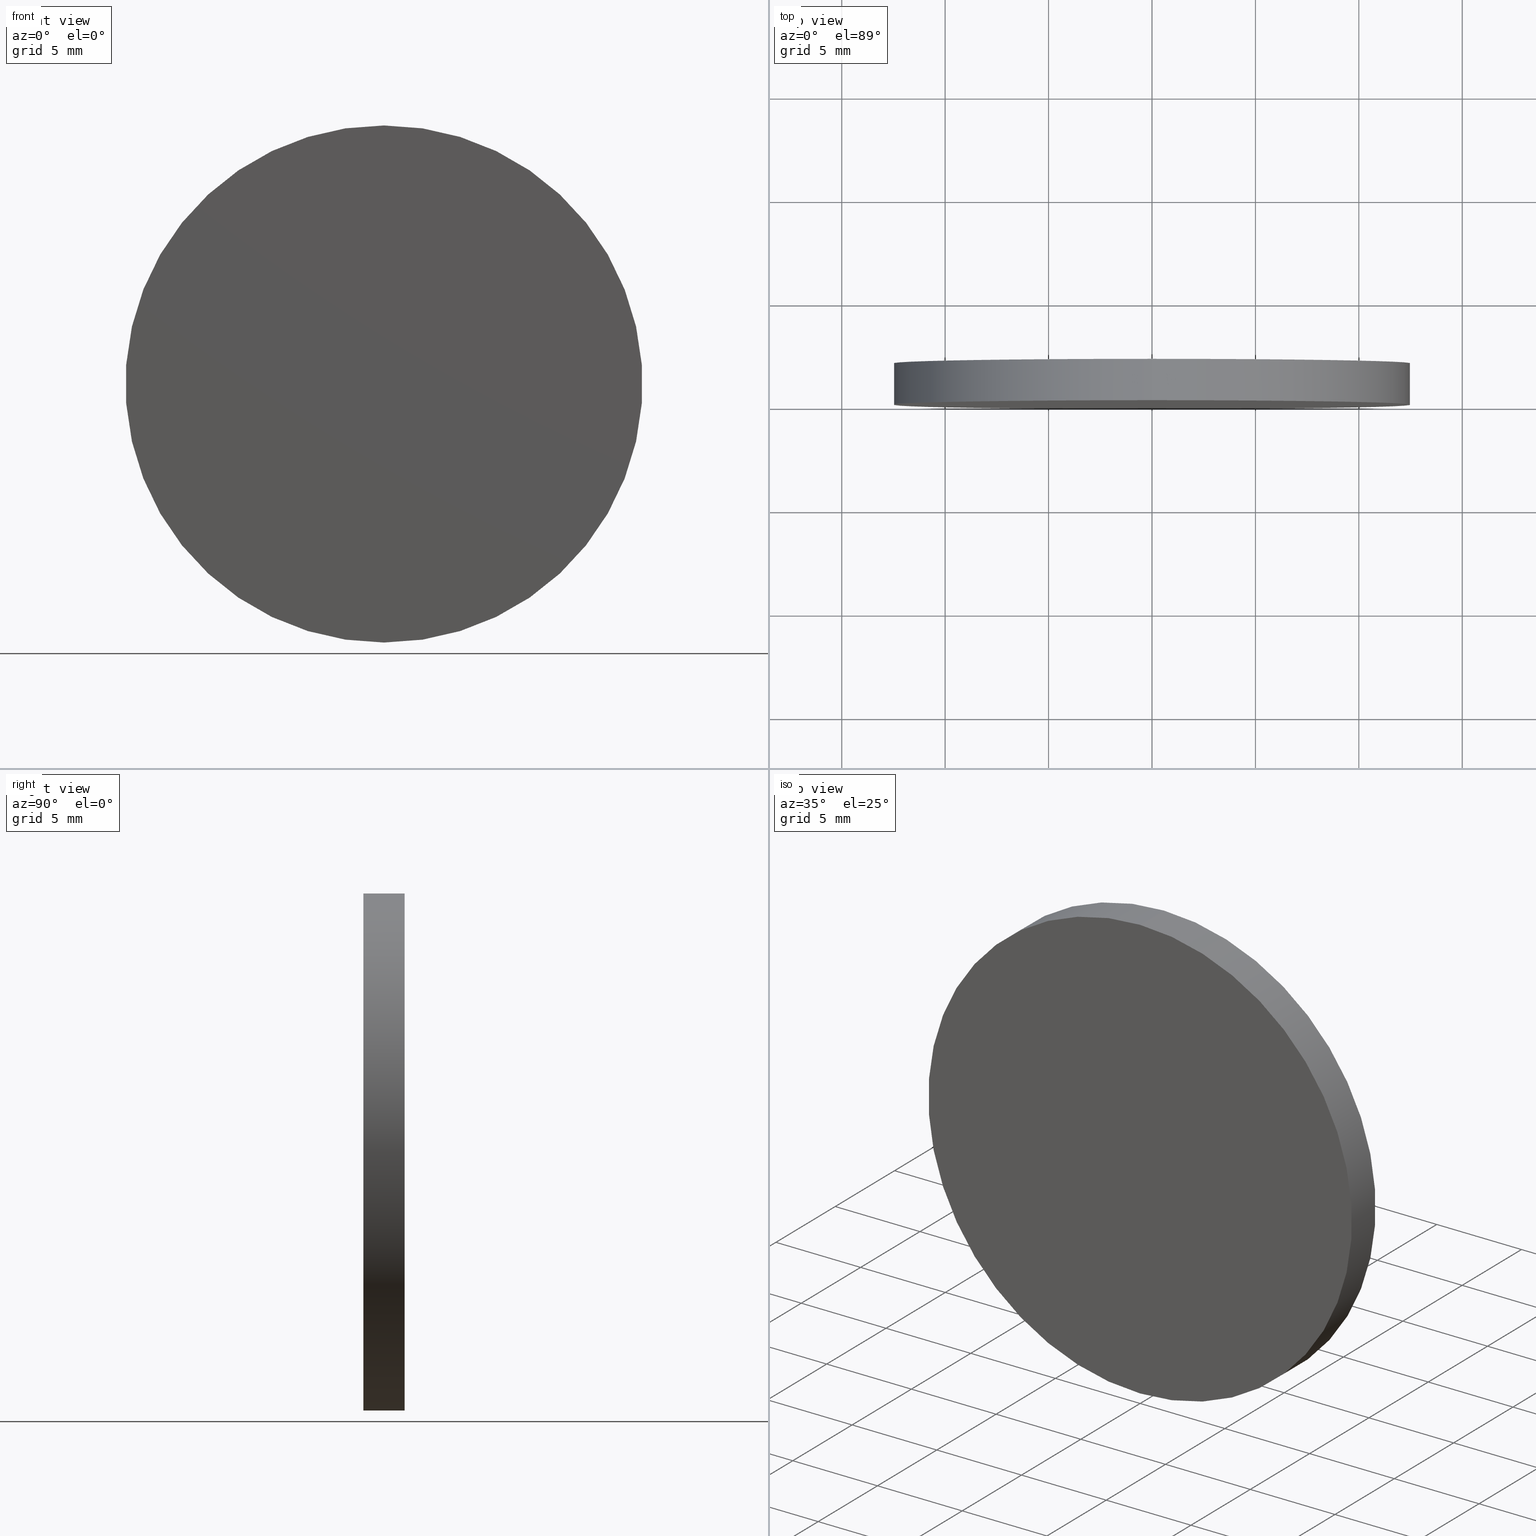
[diagram: canonical four-view strip — front | top / right | iso, engineering-drawing reading convention]
A machine part, canonical four-view strip (front | top / right | iso — engineering-drawing reading convention). The complete STEP part file that produces these views, byte-faithful:
ISO-10303-21;
HEADER;
FILE_DESCRIPTION (( 'STEP AP214' ),
    '1' );
FILE_NAME ('238520.STEP',
    '2019-07-31T07:06:07',
    ( 'user' ),
    ( '΢���й�' ),
    'SwSTEP 2.0',
    'SolidWorks 2016',
    '' );
FILE_SCHEMA (( 'AUTOMOTIVE_DESIGN' ));
ENDSEC;

DATA;
#1 = PRODUCT ( '238520', '238520', '', ( #122 ) ) ;
#2 = FACE_OUTER_BOUND ( 'NONE', #132, .T. ) ;
#3 = ADVANCED_BREP_SHAPE_REPRESENTATION ( '238520', ( #121, #110 ), #97 ) ;
#4 = ORIENTED_EDGE ( 'NONE', *, *, #6, .T. ) ;
#5 =( NAMED_UNIT ( * ) SI_UNIT ( $, .STERADIAN. ) SOLID_ANGLE_UNIT ( ) );
#6 = EDGE_CURVE ( 'NONE', #113, #23, #31, .T. ) ;
#7 = DIRECTION ( 'NONE',  ( 0.0000000000000000000, 0.0000000000000000000, 1.000000000000000000 ) ) ;
#8 =( NAMED_UNIT ( * ) SI_UNIT ( $, .STERADIAN. ) SOLID_ANGLE_UNIT ( ) );
#9 = DIRECTION ( 'NONE',  ( 0.0000000000000000000, -0.0000000000000000000, 1.000000000000000000 ) ) ;
#10 = LINE ( 'NONE', #137, #38 ) ;
#11 = DIRECTION ( 'NONE',  ( -0.0000000000000000000, -1.000000000000000000, -0.0000000000000000000 ) ) ;
#12 = CARTESIAN_POINT ( 'NONE',  ( 0.0000000000000000000, 0.0000000000000000000, 0.0000000000000000000 ) ) ;
#13 = UNCERTAINTY_MEASURE_WITH_UNIT (LENGTH_MEASURE( 1.000000000000000100E-005 ), #65, 'distance_accuracy_value', 'NONE');
#14 = CYLINDRICAL_SURFACE ( 'NONE', #70, 12.50000000000000000 ) ;
#15 = FACE_OUTER_BOUND ( 'NONE', #107, .T. ) ;
#16 =( LENGTH_UNIT ( ) NAMED_UNIT ( * ) SI_UNIT ( .MILLI., .METRE. ) );
#17 = CARTESIAN_POINT ( 'NONE',  ( 0.0000000000000000000, 2.000000000000000000, 0.0000000000000000000 ) ) ;
#18 =( LENGTH_UNIT ( ) NAMED_UNIT ( * ) SI_UNIT ( .MILLI., .METRE. ) );
#19 = EDGE_CURVE ( 'NONE', #95, #68, #126, .T. ) ;
#20 = CARTESIAN_POINT ( 'NONE',  ( 0.0000000000000000000, 2.000000000000000000, 0.0000000000000000000 ) ) ;
#21 = CARTESIAN_POINT ( 'NONE',  ( 0.0000000000000000000, 0.0000000000000000000, -12.50000000000000000 ) ) ;
#22 = SURFACE_STYLE_FILL_AREA ( #98 ) ;
#23 = VERTEX_POINT ( 'NONE', #21 ) ;
#24 = MECHANICAL_DESIGN_GEOMETRIC_PRESENTATION_REPRESENTATION (  '', ( #82 ), #55 ) ;
#25 = ORIENTED_EDGE ( 'NONE', *, *, #114, .T. ) ;
#26 = SURFACE_SIDE_STYLE ('',( #73 ) ) ;
#27 = CARTESIAN_POINT ( 'NONE',  ( 0.0000000000000000000, 0.0000000000000000000, 0.0000000000000000000 ) ) ;
#28 = SURFACE_SIDE_STYLE ('',( #22 ) ) ;
#29 = DIRECTION ( 'NONE',  ( 0.0000000000000000000, 1.000000000000000000, 0.0000000000000000000 ) ) ;
#30 = CARTESIAN_POINT ( 'NONE',  ( 0.0000000000000000000, 2.000000000000000000, 0.0000000000000000000 ) ) ;
#31 = CIRCLE ( 'NONE', #136, 12.50000000000000000 ) ;
#32 = ADVANCED_FACE ( 'NONE', ( #2 ), #47, .F. ) ;
#33 = PRESENTATION_STYLE_ASSIGNMENT (( #87 ) ) ;
#34 = UNCERTAINTY_MEASURE_WITH_UNIT (LENGTH_MEASURE( 1.000000000000000100E-005 ), #16, 'distance_accuracy_value', 'NONE');
#35 = PRODUCT_DEFINITION_CONTEXT ( 'detailed design', #48, 'design' ) ;
#36 = EDGE_CURVE ( 'NONE', #68, #23, #63, .T. ) ;
#37 = FACE_OUTER_BOUND ( 'NONE', #72, .T. ) ;
#38 = VECTOR ( 'NONE', #109, 1000.000000000000000 ) ;
#39 = APPLICATION_CONTEXT ( 'automotive_design' ) ;
#40 = DIRECTION ( 'NONE',  ( 0.0000000000000000000, 0.0000000000000000000, -1.000000000000000000 ) ) ;
#41 = CIRCLE ( 'NONE', #89, 12.50000000000000000 ) ;
#42 = CARTESIAN_POINT ( 'NONE',  ( 1.530808498934191500E-015, 2.000000000000000000, 12.50000000000000000 ) ) ;
#43 = DIRECTION ( 'NONE',  ( 0.0000000000000000000, -0.0000000000000000000, 1.000000000000000000 ) ) ;
#44 = CYLINDRICAL_SURFACE ( 'NONE', #93, 12.50000000000000000 ) ;
#45 = ADVANCED_FACE ( 'NONE', ( #119 ), #14, .T. ) ;
#46 = CIRCLE ( 'NONE', #85, 12.50000000000000000 ) ;
#47 = PLANE ( 'NONE',  #94 ) ;
#48 = APPLICATION_CONTEXT ( 'automotive_design' ) ;
#49 = APPLICATION_PROTOCOL_DEFINITION ( 'draft international standard', 'automotive_design', 1998, #39 ) ;
#50 = EDGE_CURVE ( 'NONE', #23, #113, #41, .T. ) ;
#51 = FILL_AREA_STYLE_COLOUR ( '', #139 ) ;
#52 = ORIENTED_EDGE ( 'NONE', *, *, #130, .F. ) ;
#53 = ORIENTED_EDGE ( 'NONE', *, *, #130, .T. ) ;
#54 = COLOUR_RGB ( '',1.000000000000000000, 1.000000000000000000, 1.000000000000000000 ) ;
#55 =( GEOMETRIC_REPRESENTATION_CONTEXT ( 3 ) GLOBAL_UNCERTAINTY_ASSIGNED_CONTEXT ( ( #103 ) ) GLOBAL_UNIT_ASSIGNED_CONTEXT ( ( #18, #77, #8 ) ) REPRESENTATION_CONTEXT ( 'NONE', 'WORKASPACE' ) );
#56 = STYLED_ITEM ( 'NONE', ( #33 ), #3 ) ;
#57 = ORIENTED_EDGE ( 'NONE', *, *, #36, .F. ) ;
#58 = DIRECTION ( 'NONE',  ( 1.000000000000000000, 0.0000000000000000000, 0.0000000000000000000 ) ) ;
#59 =( NAMED_UNIT ( * ) SI_UNIT ( $, .STERADIAN. ) SOLID_ANGLE_UNIT ( ) );
#60 = DIRECTION ( 'NONE',  ( -0.0000000000000000000, -1.000000000000000000, -0.0000000000000000000 ) ) ;
#61 = CARTESIAN_POINT ( 'NONE',  ( 0.0000000000000000000, 2.000000000000000000, -12.50000000000000000 ) ) ;
#62 = DIRECTION ( 'NONE',  ( 0.0000000000000000000, 1.000000000000000000, 0.0000000000000000000 ) ) ;
#63 = LINE ( 'NONE', #79, #116 ) ;
#64 = CLOSED_SHELL ( 'NONE', ( #128, #45, #84, #32 ) ) ;
#65 =( LENGTH_UNIT ( ) NAMED_UNIT ( * ) SI_UNIT ( .MILLI., .METRE. ) );
#66 = MECHANICAL_DESIGN_GEOMETRIC_PRESENTATION_REPRESENTATION (  '', ( #56 ), #123 ) ;
#67 = DIRECTION ( 'NONE',  ( -0.0000000000000000000, -1.000000000000000000, -0.0000000000000000000 ) ) ;
#68 = VERTEX_POINT ( 'NONE', #61 ) ;
#69 = ORIENTED_EDGE ( 'NONE', *, *, #19, .F. ) ;
#70 = AXIS2_PLACEMENT_3D ( 'NONE', #30, #67, #100 ) ;
#71 = PRESENTATION_LAYER_ASSIGNMENT (  '', '', ( #56 ) ) ;
#72 = EDGE_LOOP ( 'NONE', ( #53, #75 ) ) ;
#73 = SURFACE_STYLE_FILL_AREA ( #96 ) ;
#74 =( NAMED_UNIT ( * ) PLANE_ANGLE_UNIT ( ) SI_UNIT ( $, .RADIAN. ) );
#75 = ORIENTED_EDGE ( 'NONE', *, *, #19, .T. ) ;
#76 = DIRECTION ( 'NONE',  ( 0.0000000000000000000, 1.000000000000000000, 0.0000000000000000000 ) ) ;
#77 =( NAMED_UNIT ( * ) PLANE_ANGLE_UNIT ( ) SI_UNIT ( $, .RADIAN. ) );
#78 = DIRECTION ( 'NONE',  ( 0.0000000000000000000, 1.000000000000000000, 0.0000000000000000000 ) ) ;
#79 = CARTESIAN_POINT ( 'NONE',  ( 0.0000000000000000000, 2.000000000000000000, -12.50000000000000000 ) ) ;
#80 = DIRECTION ( 'NONE',  ( 0.0000000000000000000, 0.0000000000000000000, 1.000000000000000000 ) ) ;
#81 = DIRECTION ( 'NONE',  ( 0.0000000000000000000, 1.000000000000000000, 0.0000000000000000000 ) ) ;
#82 = STYLED_ITEM ( 'NONE', ( #83 ), #121 ) ;
#83 = PRESENTATION_STYLE_ASSIGNMENT (( #90 ) ) ;
#84 = ADVANCED_FACE ( 'NONE', ( #37 ), #111, .T. ) ;
#85 = AXIS2_PLACEMENT_3D ( 'NONE', #17, #76, #7 ) ;
#86 = ORIENTED_EDGE ( 'NONE', *, *, #36, .T. ) ;
#87 = SURFACE_STYLE_USAGE ( .BOTH. , #26 ) ;
#88 = FILL_AREA_STYLE_COLOUR ( '', #54 ) ;
#89 = AXIS2_PLACEMENT_3D ( 'NONE', #99, #29, #91 ) ;
#90 = SURFACE_STYLE_USAGE ( .BOTH. , #28 ) ;
#91 = DIRECTION ( 'NONE',  ( 0.0000000000000000000, 0.0000000000000000000, 1.000000000000000000 ) ) ;
#92 = PRODUCT_DEFINITION_SHAPE ( 'NONE', 'NONE',  #120 ) ;
#93 = AXIS2_PLACEMENT_3D ( 'NONE', #135, #60, #40 ) ;
#94 = AXIS2_PLACEMENT_3D ( 'NONE', #12, #112, #43 ) ;
#95 = VERTEX_POINT ( 'NONE', #42 ) ;
#96 = FILL_AREA_STYLE ('',( #88 ) ) ;
#97 =( GEOMETRIC_REPRESENTATION_CONTEXT ( 3 ) GLOBAL_UNCERTAINTY_ASSIGNED_CONTEXT ( ( #13 ) ) GLOBAL_UNIT_ASSIGNED_CONTEXT ( ( #65, #134, #59 ) ) REPRESENTATION_CONTEXT ( 'NONE', 'WORKASPACE' ) );
#98 = FILL_AREA_STYLE ('',( #51 ) ) ;
#99 = CARTESIAN_POINT ( 'NONE',  ( 0.0000000000000000000, 0.0000000000000000000, 0.0000000000000000000 ) ) ;
#100 = DIRECTION ( 'NONE',  ( 0.0000000000000000000, 0.0000000000000000000, -1.000000000000000000 ) ) ;
#101 = ORIENTED_EDGE ( 'NONE', *, *, #6, .F. ) ;
#102 = CARTESIAN_POINT ( 'NONE',  ( 0.0000000000000000000, 0.0000000000000000000, 0.0000000000000000000 ) ) ;
#103 = UNCERTAINTY_MEASURE_WITH_UNIT (LENGTH_MEASURE( 1.000000000000000100E-005 ), #18, 'distance_accuracy_value', 'NONE');
#104 = EDGE_LOOP ( 'NONE', ( #140, #52, #86, #129 ) ) ;
#105 = PRESENTATION_LAYER_ASSIGNMENT (  '', '', ( #82 ) ) ;
#106 = PRODUCT_DEFINITION_FORMATION_WITH_SPECIFIED_SOURCE ( '�κ�', '', #1, .NOT_KNOWN. ) ;
#107 = EDGE_LOOP ( 'NONE', ( #69, #25, #4, #57 ) ) ;
#108 = APPLICATION_PROTOCOL_DEFINITION ( 'draft international standard', 'automotive_design', 1998, #48 ) ;
#109 = DIRECTION ( 'NONE',  ( -0.0000000000000000000, -1.000000000000000000, -0.0000000000000000000 ) ) ;
#110 = AXIS2_PLACEMENT_3D ( 'NONE', #27, #133, #58 ) ;
#111 = PLANE ( 'NONE',  #118 ) ;
#112 = DIRECTION ( 'NONE',  ( 0.0000000000000000000, 1.000000000000000000, 0.0000000000000000000 ) ) ;
#113 = VERTEX_POINT ( 'NONE', #124 ) ;
#114 = EDGE_CURVE ( 'NONE', #95, #113, #10, .T. ) ;
#115 = PRODUCT_RELATED_PRODUCT_CATEGORY ( 'part', '', ( #1 ) ) ;
#116 = VECTOR ( 'NONE', #11, 1000.000000000000000 ) ;
#117 = SHAPE_DEFINITION_REPRESENTATION ( #92, #3 ) ;
#118 = AXIS2_PLACEMENT_3D ( 'NONE', #20, #78, #9 ) ;
#119 = FACE_OUTER_BOUND ( 'NONE', #104, .T. ) ;
#120 = PRODUCT_DEFINITION ( 'δ֪', '', #106, #35 ) ;
#121 = MANIFOLD_SOLID_BREP ( '͹̨-����1', #64 ) ;
#122 = PRODUCT_CONTEXT ( 'NONE', #39, 'mechanical' ) ;
#123 =( GEOMETRIC_REPRESENTATION_CONTEXT ( 3 ) GLOBAL_UNCERTAINTY_ASSIGNED_CONTEXT ( ( #34 ) ) GLOBAL_UNIT_ASSIGNED_CONTEXT ( ( #16, #74, #5 ) ) REPRESENTATION_CONTEXT ( 'NONE', 'WORKASPACE' ) );
#124 = CARTESIAN_POINT ( 'NONE',  ( 1.530808498934191500E-015, 0.0000000000000000000, 12.50000000000000000 ) ) ;
#125 = DIRECTION ( 'NONE',  ( 0.0000000000000000000, 0.0000000000000000000, 1.000000000000000000 ) ) ;
#126 = CIRCLE ( 'NONE', #127, 12.50000000000000000 ) ;
#127 = AXIS2_PLACEMENT_3D ( 'NONE', #138, #62, #125 ) ;
#128 = ADVANCED_FACE ( 'NONE', ( #15 ), #44, .T. ) ;
#129 = ORIENTED_EDGE ( 'NONE', *, *, #50, .T. ) ;
#130 = EDGE_CURVE ( 'NONE', #68, #95, #46, .T. ) ;
#131 = ORIENTED_EDGE ( 'NONE', *, *, #50, .F. ) ;
#132 = EDGE_LOOP ( 'NONE', ( #131, #101 ) ) ;
#133 = DIRECTION ( 'NONE',  ( 0.0000000000000000000, 0.0000000000000000000, 1.000000000000000000 ) ) ;
#134 =( NAMED_UNIT ( * ) PLANE_ANGLE_UNIT ( ) SI_UNIT ( $, .RADIAN. ) );
#135 = CARTESIAN_POINT ( 'NONE',  ( 0.0000000000000000000, 2.000000000000000000, 0.0000000000000000000 ) ) ;
#136 = AXIS2_PLACEMENT_3D ( 'NONE', #102, #81, #80 ) ;
#137 = CARTESIAN_POINT ( 'NONE',  ( 1.530808498934191500E-015, 2.000000000000000000, 12.50000000000000000 ) ) ;
#138 = CARTESIAN_POINT ( 'NONE',  ( 0.0000000000000000000, 2.000000000000000000, 0.0000000000000000000 ) ) ;
#139 = COLOUR_RGB ( '',1.000000000000000000, 1.000000000000000000, 1.000000000000000000 ) ;
#140 = ORIENTED_EDGE ( 'NONE', *, *, #114, .F. ) ;
ENDSEC;
END-ISO-10303-21;
